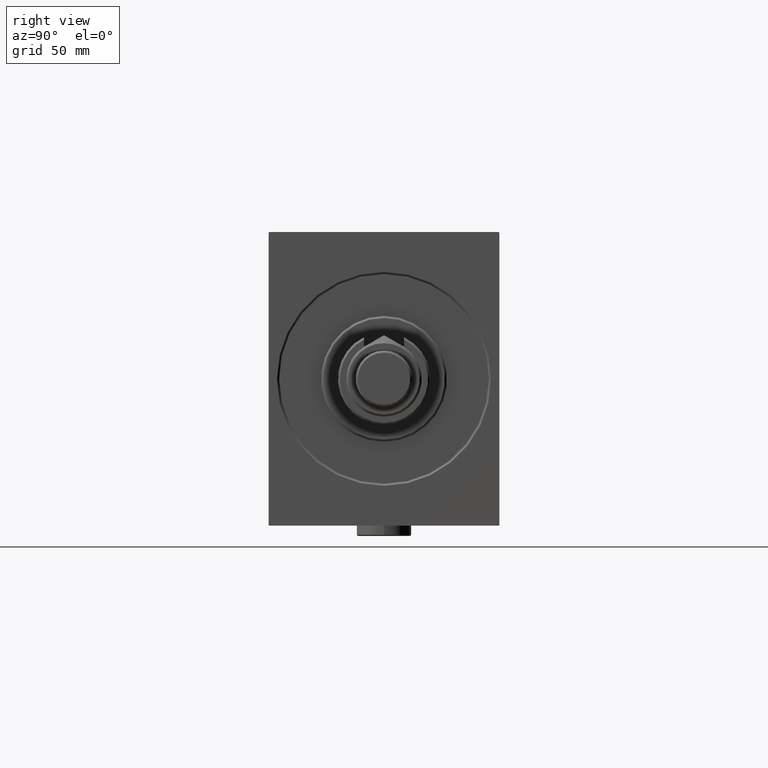
[diagram: clean part render]
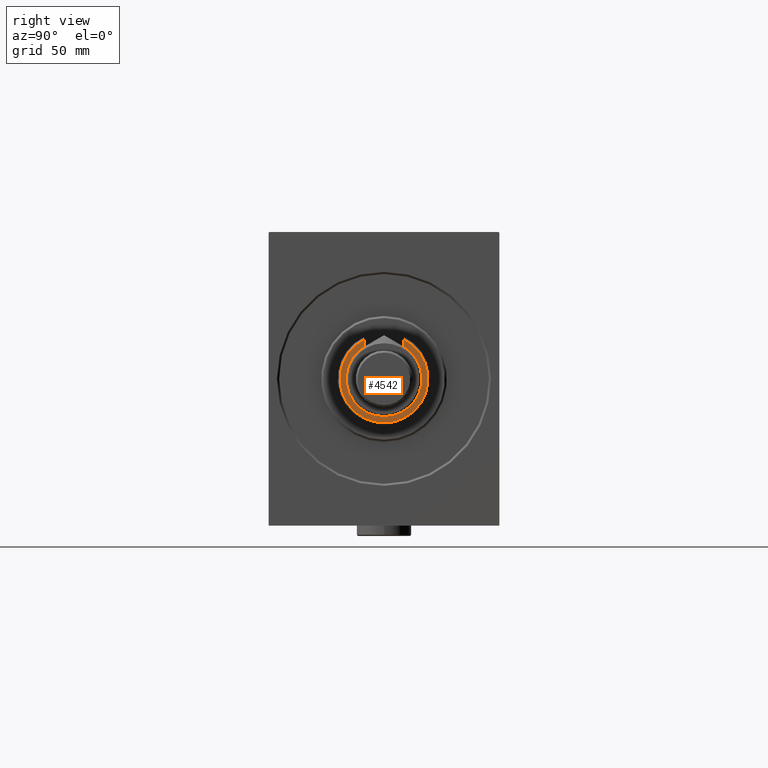
[diagram: same view with one face highlighted and labeled with its STEP entity id]
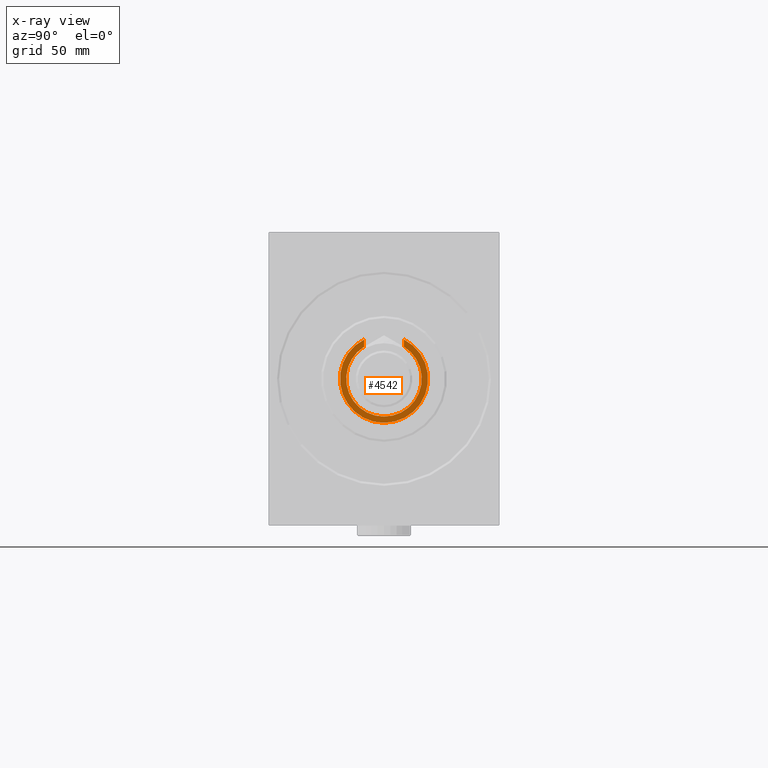
[diagram: x-ray of the same camera — body ghosted, the highlighted face saturated]
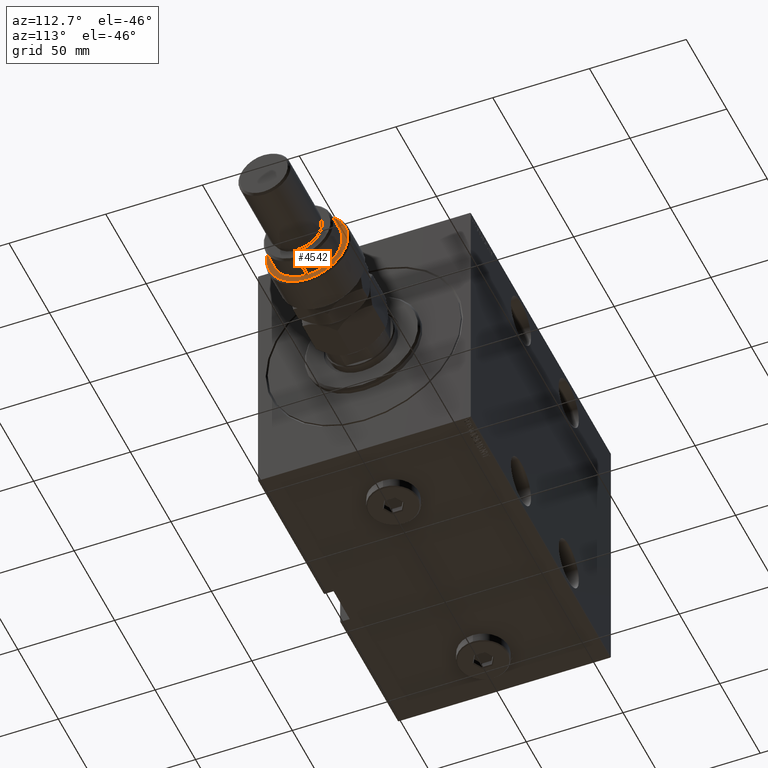
[diagram: same view with one face highlighted and labeled with its STEP entity id]
A machine part, right view. The second image highlights one B-rep face of the part: STEP entity #4542.
The next image is the same camera in x-ray: the body ghosted, the highlighted face saturated — about 0% of this face is hidden behind the body in this view.
A second angle (auxiliary view) of the same face is appended — the face is thin or edge-on in the first view.
In plain terms, the highlighted planar face has unit normal (1, 0, -0).
Its self-contained STEP definition (entity closure, byte-faithful):
#587 = FACE_OUTER_BOUND ( 'NONE', #5347, .T. ) ;
#996 = EDGE_CURVE ( 'NONE', #47144, #37620, #29422, .T. ) ;
#2320 = CIRCLE ( 'NONE', #19082, 18.00000000000000000 ) ;
#4542 = ADVANCED_FACE ( 'NONE', ( #587 ), #40273, .T. ) ;
#4597 = LINE ( 'NONE', #33296, #17669 ) ;
#4778 = CARTESIAN_POINT ( 'NONE',  ( 0.000000000000000000, 0.000000000000000000, 20.00000000000000000 ) ) ;
#5347 = EDGE_LOOP ( 'NONE', ( #15174, #44718, #45249, #16425, #46854 ) ) ;
#7348 = CARTESIAN_POINT ( 'NONE',  ( -15.28888485142065434, -9.500000000000000000, 19.99999999999999645 ) ) ;
#8662 = DIRECTION ( 'NONE',  ( 0.000000000000000000, 0.000000000000000000, 1.000000000000000000 ) ) ;
#12044 = VERTEX_POINT ( 'NONE', #17594 ) ;
#12131 = CIRCLE ( 'NONE', #22020, 18.00000000000000000 ) ;
#12500 = CARTESIAN_POINT ( 'NONE',  ( 0.000000000000000000, 0.000000000000000000, 20.00000000000000000 ) ) ;
#14668 = DIRECTION ( 'NONE',  ( 1.000000000000000000, 0.000000000000000000, 0.000000000000000000 ) ) ;
#15128 = DIRECTION ( 'NONE',  ( 1.000000000000000000, 0.000000000000000000, 0.000000000000000000 ) ) ;
#15174 = ORIENTED_EDGE ( 'NONE', *, *, #20892, .F. ) ;
#16425 = ORIENTED_EDGE ( 'NONE', *, *, #16530, .F. ) ;
#16530 = EDGE_CURVE ( 'NONE', #20883, #47144, #2320, .T. ) ;
#17594 = CARTESIAN_POINT ( 'NONE',  ( -18.72832080032801372, -9.500000000000000000, 20.00000000000000000 ) ) ;
#17669 = VECTOR ( 'NONE', #40708, 1000.000000000000000 ) ;
#18429 = CARTESIAN_POINT ( 'NONE',  ( 0.000000000000000000, 9.500000000000000000, 20.00000000000000000 ) ) ;
#19082 = AXIS2_PLACEMENT_3D ( 'NONE', #43895, #39630, #32920 ) ;
#19641 = CARTESIAN_POINT ( 'NONE',  ( 18.00000000000000000, 2.204364238465235428E-15, 20.00000000000000000 ) ) ;
#20883 = VERTEX_POINT ( 'NONE', #19641 ) ;
#20889 = EDGE_CURVE ( 'NONE', #12044, #37620, #32956, .T. ) ;
#20892 = EDGE_CURVE ( 'NONE', #12044, #39509, #4597, .T. ) ;
#21016 = VECTOR ( 'NONE', #33018, 1000.000000000000000 ) ;
#21612 = DIRECTION ( 'NONE',  ( 0.000000000000000000, 0.000000000000000000, 1.000000000000000000 ) ) ;
#22020 = AXIS2_PLACEMENT_3D ( 'NONE', #4778, #21612, #14668 ) ;
#22340 = DIRECTION ( 'NONE',  ( 0.000000000000000000, 0.000000000000000000, 1.000000000000000000 ) ) ;
#25308 = AXIS2_PLACEMENT_3D ( 'NONE', #12500, #8662, #15128 ) ;
#25461 = DIRECTION ( 'NONE',  ( 1.000000000000000000, 0.000000000000000000, -0.000000000000000000 ) ) ;
#28632 = CARTESIAN_POINT ( 'NONE',  ( -15.28888485142065434, 9.500000000000000000, 19.99999999999999645 ) ) ;
#28809 = CARTESIAN_POINT ( 'NONE',  ( 0.000000000000000000, 0.000000000000000000, 20.00000000000000000 ) ) ;
#29422 = LINE ( 'NONE', #18429, #21016 ) ;
#32920 = DIRECTION ( 'NONE',  ( 1.000000000000000000, 0.000000000000000000, 0.000000000000000000 ) ) ;
#32956 = CIRCLE ( 'NONE', #25308, 20.99999999999997868 ) ;
#33018 = DIRECTION ( 'NONE',  ( -1.000000000000000000, 0.000000000000000000, 0.000000000000000000 ) ) ;
#33155 = CARTESIAN_POINT ( 'NONE',  ( -18.72832080032801372, 9.500000000000000000, 20.00000000000000000 ) ) ;
#33296 = CARTESIAN_POINT ( 'NONE',  ( 0.000000000000000000, -9.500000000000000000, 20.00000000000000000 ) ) ;
#35579 = EDGE_CURVE ( 'NONE', #39509, #20883, #12131, .T. ) ;
#37620 = VERTEX_POINT ( 'NONE', #33155 ) ;
#37896 = AXIS2_PLACEMENT_3D ( 'NONE', #28809, #22340, #25461 ) ;
#39509 = VERTEX_POINT ( 'NONE', #7348 ) ;
#39630 = DIRECTION ( 'NONE',  ( 0.000000000000000000, 0.000000000000000000, 1.000000000000000000 ) ) ;
#40273 = PLANE ( 'NONE',  #37896 ) ;
#40708 = DIRECTION ( 'NONE',  ( 1.000000000000000000, 0.000000000000000000, -0.000000000000000000 ) ) ;
#43895 = CARTESIAN_POINT ( 'NONE',  ( 0.000000000000000000, 0.000000000000000000, 20.00000000000000000 ) ) ;
#44718 = ORIENTED_EDGE ( 'NONE', *, *, #20889, .T. ) ;
#45249 = ORIENTED_EDGE ( 'NONE', *, *, #996, .F. ) ;
#46854 = ORIENTED_EDGE ( 'NONE', *, *, #35579, .F. ) ;
#47144 = VERTEX_POINT ( 'NONE', #28632 ) ;